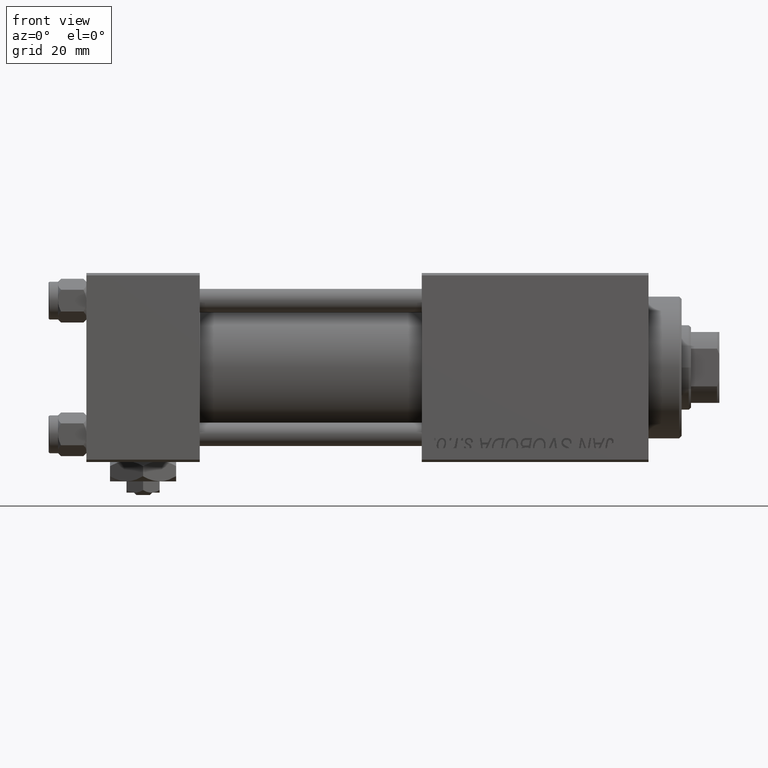
[diagram: clean part render]
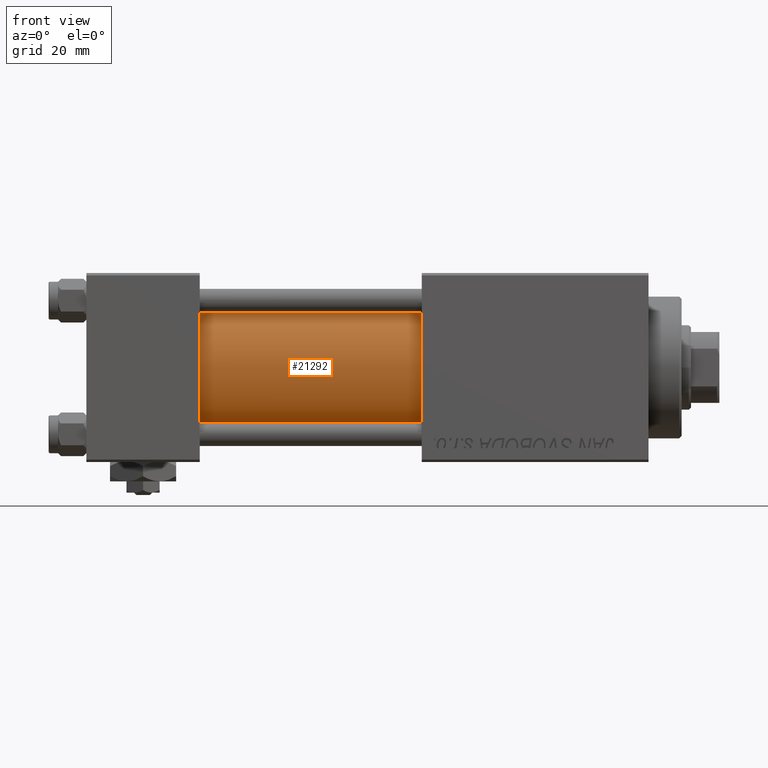
[diagram: same view with one face highlighted and labeled with its STEP entity id]
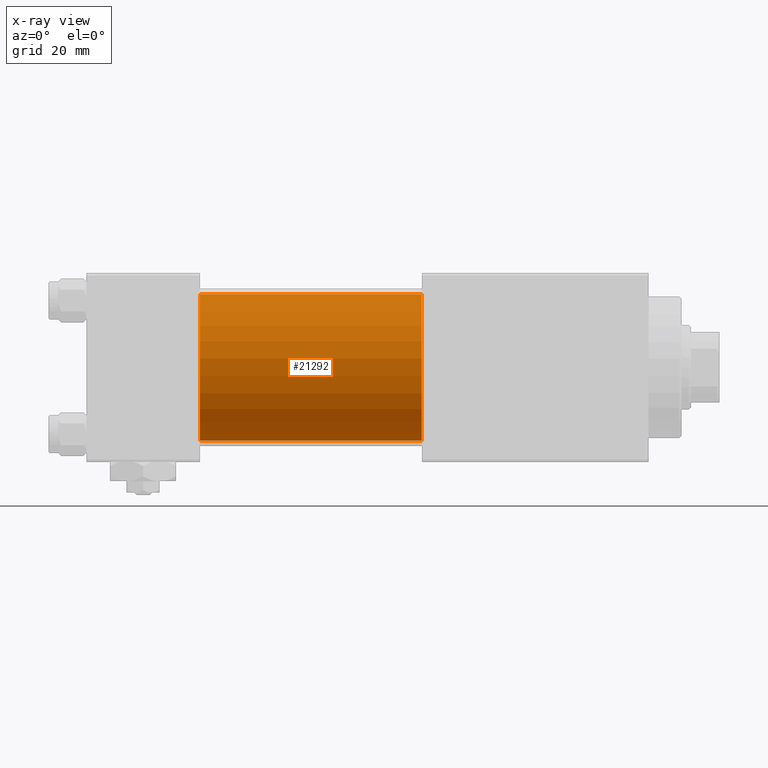
[diagram: x-ray of the same camera — body ghosted, the highlighted face saturated]
A machine part, front view. The second image highlights one B-rep face of the part: STEP entity #21292.
The next image is the same camera in x-ray: the body ghosted, the highlighted face saturated — about 0% of this face is hidden behind the body in this view.
In plain terms, the highlighted cylindrical surface (partial cylindrical patch) has radius 15.5 mm, axis along (-1, -0, -0).
Its self-contained STEP definition (entity closure, byte-faithful):
#548 = DIRECTION ( 'NONE',  ( 0.000000000000000000, 0.000000000000000000, 1.000000000000000000 ) ) ;
#905 = LINE ( 'NONE', #12721, #44918 ) ;
#2685 = VERTEX_POINT ( 'NONE', #25053 ) ;
#3588 = ORIENTED_EDGE ( 'NONE', *, *, #48106, .F. ) ;
#4016 = CARTESIAN_POINT ( 'NONE',  ( 71.00000000000001421, -2.602085213965210642E-15, 0.000000000000000000 ) ) ;
#5273 = EDGE_CURVE ( 'NONE', #29805, #28484, #6229, .T. ) ;
#6229 = CIRCLE ( 'NONE', #14624, 15.50000000000000000 ) ;
#6527 = CARTESIAN_POINT ( 'NONE',  ( 24.00000000000000000, -7.038826752868131828E-16, -15.50000000000000000 ) ) ;
#7519 = DIRECTION ( 'NONE',  ( 1.000000000000000000, 0.000000000000000000, 0.000000000000000000 ) ) ;
#7781 = EDGE_CURVE ( 'NONE', #50135, #28484, #905, .T. ) ;
#11875 = ORIENTED_EDGE ( 'NONE', *, *, #7781, .F. ) ;
#12414 = CYLINDRICAL_SURFACE ( 'NONE', #18989, 15.50000000000000000 ) ;
#12721 = CARTESIAN_POINT ( 'NONE',  ( 71.00000000000001421, -7.038826752868131828E-16, -15.50000000000000000 ) ) ;
#14624 = AXIS2_PLACEMENT_3D ( 'NONE', #36797, #36283, #548 ) ;
#15125 = ORIENTED_EDGE ( 'NONE', *, *, #40117, .T. ) ;
#15408 = DIRECTION ( 'NONE',  ( -1.000000000000000000, -0.000000000000000000, -0.000000000000000000 ) ) ;
#16664 = DIRECTION ( 'NONE',  ( -1.000000000000000000, -0.000000000000000000, -0.000000000000000000 ) ) ;
#18989 = AXIS2_PLACEMENT_3D ( 'NONE', #4016, #23734, #28438 ) ;
#19358 = LINE ( 'NONE', #51404, #35375 ) ;
#19622 = EDGE_LOOP ( 'NONE', ( #11875, #3588, #15125, #26724 ) ) ;
#19689 = CIRCLE ( 'NONE', #49031, 15.50000000000000000 ) ;
#21292 = ADVANCED_FACE ( 'NONE', ( #40013 ), #12414, .T. ) ;
#23734 = DIRECTION ( 'NONE',  ( -1.000000000000000000, -0.000000000000000000, -0.000000000000000000 ) ) ;
#25053 = CARTESIAN_POINT ( 'NONE',  ( 71.00000000000001421, -2.602085213965210642E-15, 15.50000000000000000 ) ) ;
#26724 = ORIENTED_EDGE ( 'NONE', *, *, #5273, .T. ) ;
#26953 = DIRECTION ( 'NONE',  ( 0.000000000000000000, 0.000000000000000000, -1.000000000000000000 ) ) ;
#28438 = DIRECTION ( 'NONE',  ( 0.000000000000000000, 0.000000000000000000, 1.000000000000000000 ) ) ;
#28484 = VERTEX_POINT ( 'NONE', #6527 ) ;
#29805 = VERTEX_POINT ( 'NONE', #51126 ) ;
#35375 = VECTOR ( 'NONE', #15408, 1000.000000000000000 ) ;
#36283 = DIRECTION ( 'NONE',  ( 1.000000000000000000, 0.000000000000000000, 0.000000000000000000 ) ) ;
#36797 = CARTESIAN_POINT ( 'NONE',  ( 24.00000000000000000, -2.602085213965210642E-15, 0.000000000000000000 ) ) ;
#37360 = CARTESIAN_POINT ( 'NONE',  ( 71.00000000000001421, -7.038826752868131828E-16, -15.50000000000000000 ) ) ;
#40013 = FACE_OUTER_BOUND ( 'NONE', #19622, .T. ) ;
#40117 = EDGE_CURVE ( 'NONE', #2685, #29805, #19358, .T. ) ;
#43499 = CARTESIAN_POINT ( 'NONE',  ( 71.00000000000001421, -2.602085213965210642E-15, 0.000000000000000000 ) ) ;
#44918 = VECTOR ( 'NONE', #16664, 1000.000000000000000 ) ;
#48106 = EDGE_CURVE ( 'NONE', #2685, #50135, #19689, .T. ) ;
#49031 = AXIS2_PLACEMENT_3D ( 'NONE', #43499, #7519, #26953 ) ;
#50135 = VERTEX_POINT ( 'NONE', #37360 ) ;
#51126 = CARTESIAN_POINT ( 'NONE',  ( 24.00000000000000000, -2.602085213965210642E-15, 15.50000000000000000 ) ) ;
#51404 = CARTESIAN_POINT ( 'NONE',  ( 71.00000000000001421, -2.602085213965210642E-15, 15.50000000000000000 ) ) ;